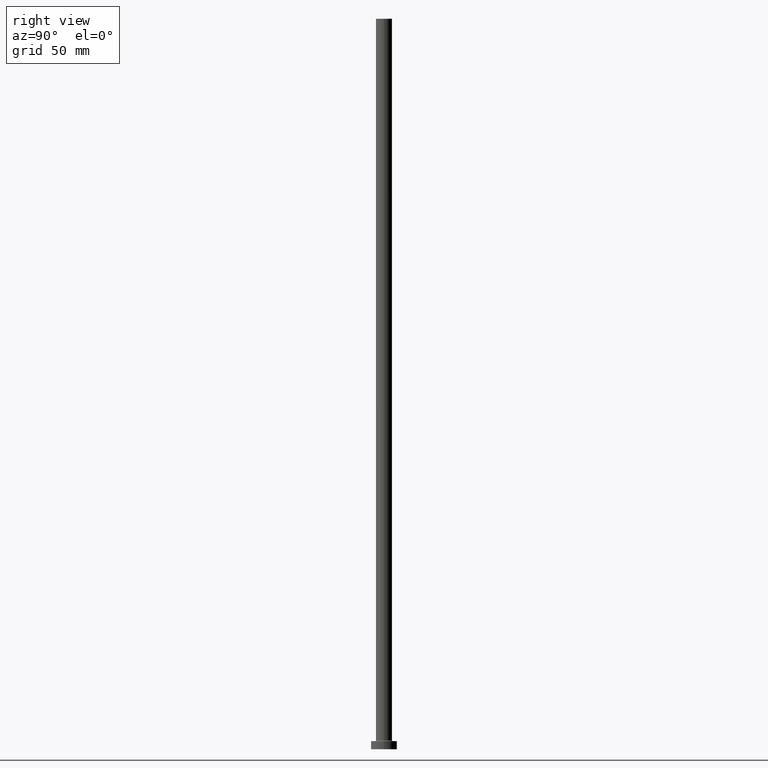
[diagram: clean part render]
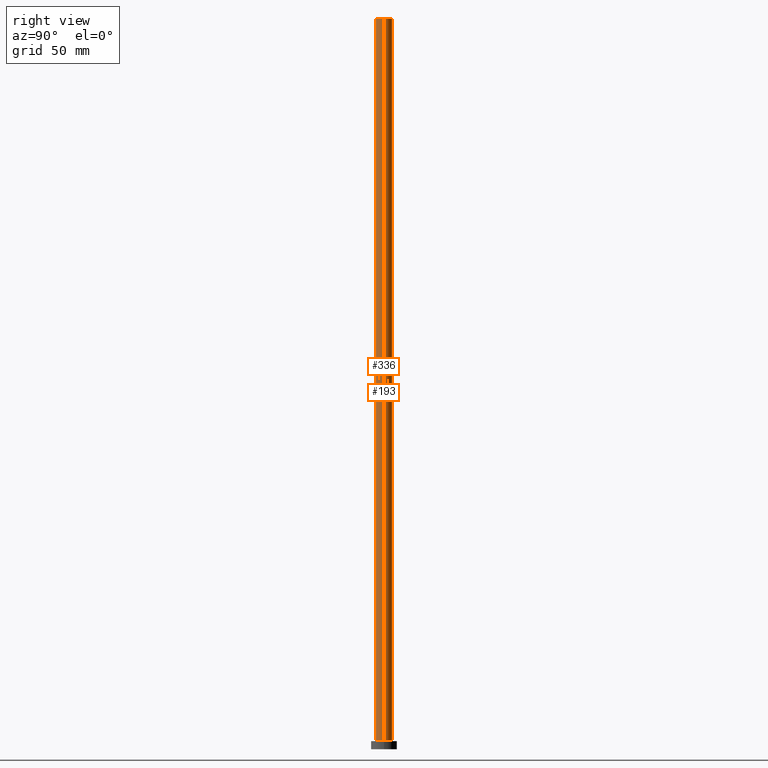
[diagram: same view with one multi-face feature highlighted, each face labeled with its STEP entity id]
A machine part, right view. The highlighted faces form ONE feature: a constant-radius fillet chain: 2 tangent blend faces with common blend radius 5 mm. The faces share edges in the B-rep.
Their STEP definitions:
[1] entity #336 (Cylinder):
#9 = ORIENTED_EDGE ( 'NONE', *, *, #96, .T. ) ;
#26 = DIRECTION ( 'NONE',  ( -1.000000000000000000, 0.000000000000000000, 0.000000000000000000 ) ) ;
#45 = CIRCLE ( 'NONE', #296, 5.000000000000000000 ) ;
#62 = DIRECTION ( 'NONE',  ( 1.000000000000000000, 0.000000000000000000, 0.000000000000000000 ) ) ;
#96 = EDGE_CURVE ( 'NONE', #429, #351, #45, .T. ) ;
#97 = CARTESIAN_POINT ( 'NONE',  ( -5.000000000000000000, 0.000000000000000000, 450.0000000000000000 ) ) ;
#125 = CARTESIAN_POINT ( 'NONE',  ( 0.000000000000000000, 0.000000000000000000, 5.500000000000005329 ) ) ;
#153 = ORIENTED_EDGE ( 'NONE', *, *, #305, .T. ) ;
#173 = CIRCLE ( 'NONE', #246, 5.000000000000000000 ) ;
#174 = EDGE_CURVE ( 'NONE', #325, #351, #400, .T. ) ;
#192 = VECTOR ( 'NONE', #243, 1000.000000000000000 ) ;
#201 = DIRECTION ( 'NONE',  ( -0.000000000000000000, -0.000000000000000000, -1.000000000000000000 ) ) ;
#207 = CARTESIAN_POINT ( 'NONE',  ( 5.000000000000000000, 6.123233995736766282E-16, 450.0000000000000000 ) ) ;
#228 = VERTEX_POINT ( 'NONE', #348 ) ;
#236 = FACE_OUTER_BOUND ( 'NONE', #301, .T. ) ;
#243 = DIRECTION ( 'NONE',  ( -0.000000000000000000, -0.000000000000000000, -1.000000000000000000 ) ) ;
#246 = AXIS2_PLACEMENT_3D ( 'NONE', #379, #456, #62 ) ;
#266 = ORIENTED_EDGE ( 'NONE', *, *, #174, .F. ) ;
#273 = CARTESIAN_POINT ( 'NONE',  ( 0.000000000000000000, 0.000000000000000000, 450.0000000000000000 ) ) ;
#296 = AXIS2_PLACEMENT_3D ( 'NONE', #125, #405, #303 ) ;
#301 = EDGE_LOOP ( 'NONE', ( #266, #388, #153, #9 ) ) ;
#303 = DIRECTION ( 'NONE',  ( 1.000000000000000000, 0.000000000000000000, 0.000000000000000000 ) ) ;
#305 = EDGE_CURVE ( 'NONE', #228, #429, #316, .T. ) ;
#316 = LINE ( 'NONE', #97, #192 ) ;
#317 = EDGE_CURVE ( 'NONE', #228, #325, #173, .T. ) ;
#325 = VERTEX_POINT ( 'NONE', #207 ) ;
#333 = VECTOR ( 'NONE', #410, 1000.000000000000000 ) ;
#336 = ADVANCED_FACE ( 'NONE', ( #236 ), #375, .T. ) ;
#341 = CARTESIAN_POINT ( 'NONE',  ( 5.000000000000000000, 6.123233995736766282E-16, 450.0000000000000000 ) ) ;
#348 = CARTESIAN_POINT ( 'NONE',  ( -5.000000000000000000, 0.000000000000000000, 450.0000000000000000 ) ) ;
#351 = VERTEX_POINT ( 'NONE', #417 ) ;
#375 = CYLINDRICAL_SURFACE ( 'NONE', #409, 5.000000000000000000 ) ;
#379 = CARTESIAN_POINT ( 'NONE',  ( 0.000000000000000000, 0.000000000000000000, 450.0000000000000000 ) ) ;
#388 = ORIENTED_EDGE ( 'NONE', *, *, #317, .F. ) ;
#400 = LINE ( 'NONE', #341, #333 ) ;
#405 = DIRECTION ( 'NONE',  ( 0.000000000000000000, 0.000000000000000000, 1.000000000000000000 ) ) ;
#409 = AXIS2_PLACEMENT_3D ( 'NONE', #273, #201, #26 ) ;
#410 = DIRECTION ( 'NONE',  ( -0.000000000000000000, -0.000000000000000000, -1.000000000000000000 ) ) ;
#417 = CARTESIAN_POINT ( 'NONE',  ( 5.000000000000000000, 6.123233995736766282E-16, 5.500000000000005329 ) ) ;
#421 = CARTESIAN_POINT ( 'NONE',  ( -5.000000000000000000, 0.000000000000000000, 5.500000000000005329 ) ) ;
#429 = VERTEX_POINT ( 'NONE', #421 ) ;
#456 = DIRECTION ( 'NONE',  ( 0.000000000000000000, 0.000000000000000000, 1.000000000000000000 ) ) ;
[2] entity #193 (Cylinder):
#32 = DIRECTION ( 'NONE',  ( 1.000000000000000000, 0.000000000000000000, 0.000000000000000000 ) ) ;
#60 = DIRECTION ( 'NONE',  ( -0.000000000000000000, -0.000000000000000000, -1.000000000000000000 ) ) ;
#76 = ORIENTED_EDGE ( 'NONE', *, *, #174, .T. ) ;
#91 = EDGE_LOOP ( 'NONE', ( #242, #76, #280, #255 ) ) ;
#92 = DIRECTION ( 'NONE',  ( 1.000000000000000000, 0.000000000000000000, 0.000000000000000000 ) ) ;
#93 = CARTESIAN_POINT ( 'NONE',  ( 0.000000000000000000, 0.000000000000000000, 450.0000000000000000 ) ) ;
#97 = CARTESIAN_POINT ( 'NONE',  ( -5.000000000000000000, 0.000000000000000000, 450.0000000000000000 ) ) ;
#128 = CARTESIAN_POINT ( 'NONE',  ( 0.000000000000000000, 0.000000000000000000, 5.500000000000005329 ) ) ;
#174 = EDGE_CURVE ( 'NONE', #325, #351, #400, .T. ) ;
#187 = AXIS2_PLACEMENT_3D ( 'NONE', #93, #60, #406 ) ;
#192 = VECTOR ( 'NONE', #243, 1000.000000000000000 ) ;
#193 = ADVANCED_FACE ( 'NONE', ( #245 ), #204, .T. ) ;
#204 = CYLINDRICAL_SURFACE ( 'NONE', #187, 5.000000000000000000 ) ;
#207 = CARTESIAN_POINT ( 'NONE',  ( 5.000000000000000000, 6.123233995736766282E-16, 450.0000000000000000 ) ) ;
#209 = CARTESIAN_POINT ( 'NONE',  ( 0.000000000000000000, 0.000000000000000000, 450.0000000000000000 ) ) ;
#228 = VERTEX_POINT ( 'NONE', #348 ) ;
#242 = ORIENTED_EDGE ( 'NONE', *, *, #454, .F. ) ;
#243 = DIRECTION ( 'NONE',  ( -0.000000000000000000, -0.000000000000000000, -1.000000000000000000 ) ) ;
#245 = FACE_OUTER_BOUND ( 'NONE', #91, .T. ) ;
#255 = ORIENTED_EDGE ( 'NONE', *, *, #305, .F. ) ;
#264 = AXIS2_PLACEMENT_3D ( 'NONE', #128, #452, #92 ) ;
#280 = ORIENTED_EDGE ( 'NONE', *, *, #283, .T. ) ;
#283 = EDGE_CURVE ( 'NONE', #351, #429, #312, .T. ) ;
#305 = EDGE_CURVE ( 'NONE', #228, #429, #316, .T. ) ;
#312 = CIRCLE ( 'NONE', #264, 5.000000000000000000 ) ;
#316 = LINE ( 'NONE', #97, #192 ) ;
#325 = VERTEX_POINT ( 'NONE', #207 ) ;
#326 = DIRECTION ( 'NONE',  ( 0.000000000000000000, 0.000000000000000000, 1.000000000000000000 ) ) ;
#333 = VECTOR ( 'NONE', #410, 1000.000000000000000 ) ;
#341 = CARTESIAN_POINT ( 'NONE',  ( 5.000000000000000000, 6.123233995736766282E-16, 450.0000000000000000 ) ) ;
#348 = CARTESIAN_POINT ( 'NONE',  ( -5.000000000000000000, 0.000000000000000000, 450.0000000000000000 ) ) ;
#351 = VERTEX_POINT ( 'NONE', #417 ) ;
#400 = LINE ( 'NONE', #341, #333 ) ;
#404 = AXIS2_PLACEMENT_3D ( 'NONE', #209, #326, #32 ) ;
#406 = DIRECTION ( 'NONE',  ( -1.000000000000000000, 0.000000000000000000, 0.000000000000000000 ) ) ;
#410 = DIRECTION ( 'NONE',  ( -0.000000000000000000, -0.000000000000000000, -1.000000000000000000 ) ) ;
#417 = CARTESIAN_POINT ( 'NONE',  ( 5.000000000000000000, 6.123233995736766282E-16, 5.500000000000005329 ) ) ;
#421 = CARTESIAN_POINT ( 'NONE',  ( -5.000000000000000000, 0.000000000000000000, 5.500000000000005329 ) ) ;
#429 = VERTEX_POINT ( 'NONE', #421 ) ;
#445 = CIRCLE ( 'NONE', #404, 5.000000000000000000 ) ;
#452 = DIRECTION ( 'NONE',  ( 0.000000000000000000, 0.000000000000000000, 1.000000000000000000 ) ) ;
#454 = EDGE_CURVE ( 'NONE', #325, #228, #445, .T. ) ;